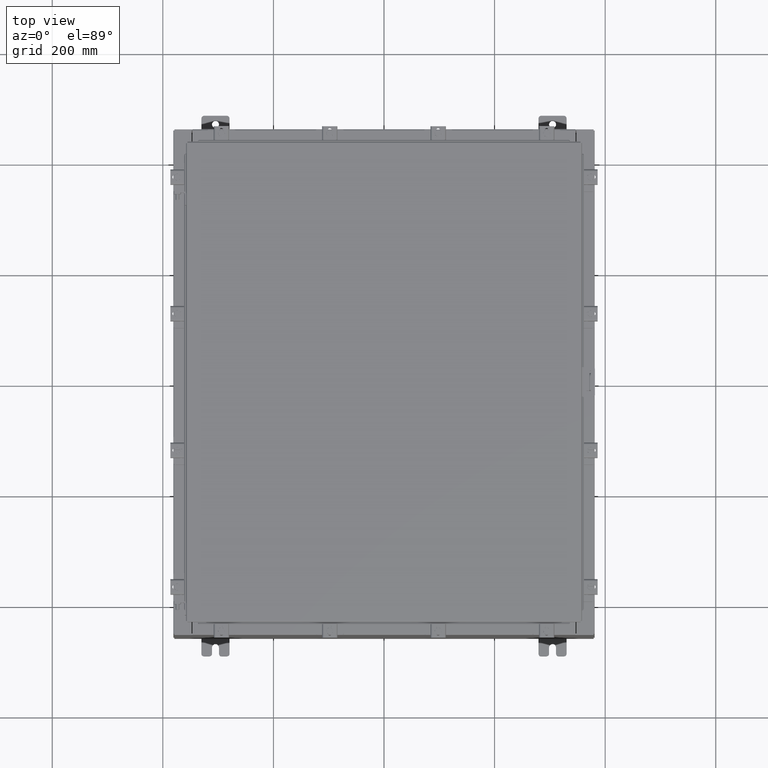
[diagram: clean part render]
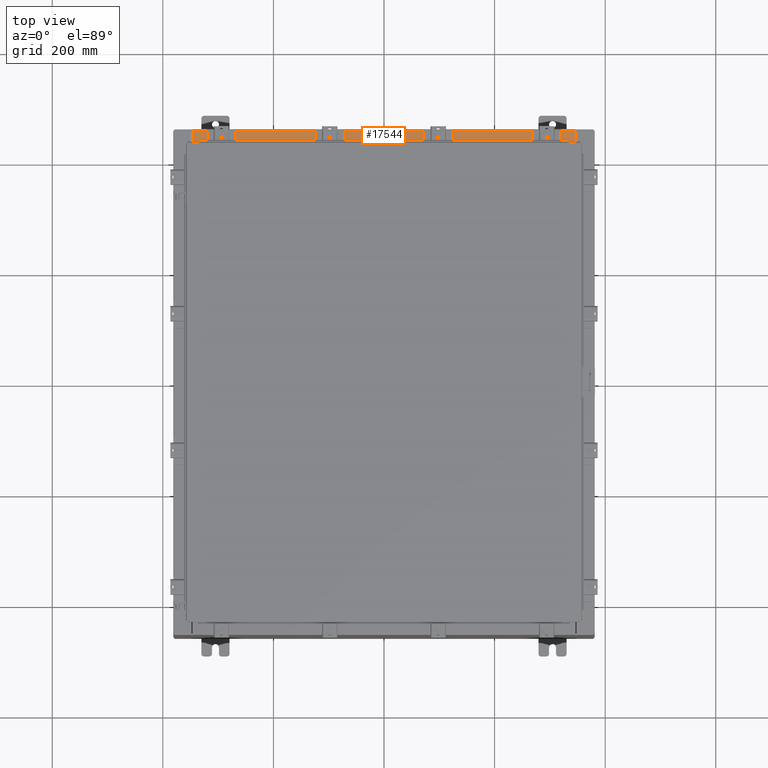
[diagram: same view with one face highlighted and labeled with its STEP entity id]
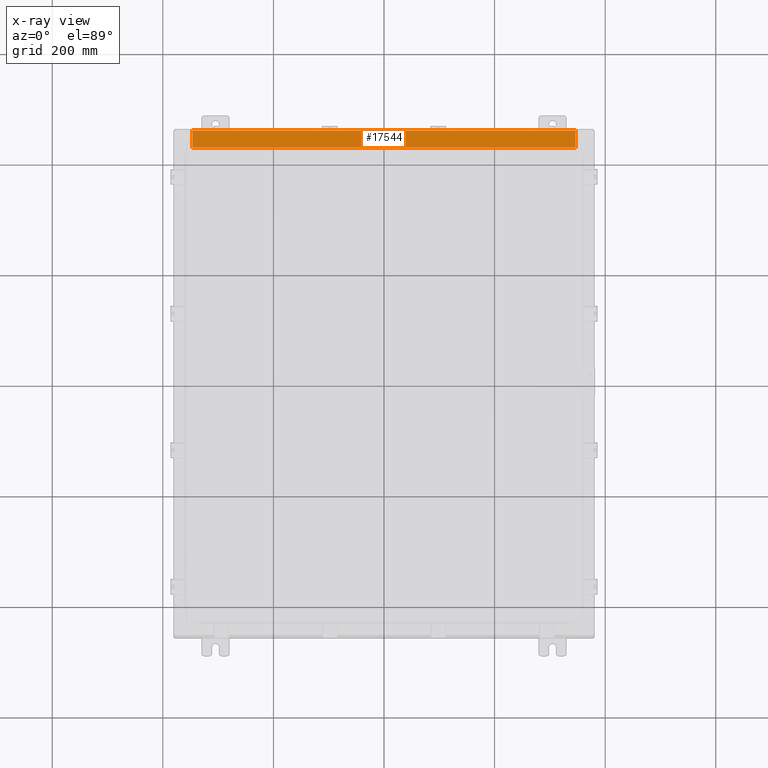
[diagram: x-ray of the same camera — body ghosted, the highlighted face saturated]
A machine part, top view. The second image highlights one B-rep face of the part: STEP entity #17544.
The next image is the same camera in x-ray: the body ghosted, the highlighted face saturated — about 0% of this face is hidden behind the body in this view.
In plain terms, the highlighted planar face has unit normal (0, 0, 1).
Its self-contained STEP definition (entity closure, byte-faithful):
#19 = LINE ( 'NONE', #3150, #18381 ) ;
#273 = ORIENTED_EDGE ( 'NONE', *, *, #4123, .F. ) ;
#557 = LINE ( 'NONE', #18237, #20105 ) ;
#1679 = VERTEX_POINT ( 'NONE', #17396 ) ;
#2013 = EDGE_CURVE ( 'NONE', #14823, #13601, #19, .T. ) ;
#3039 = EDGE_CURVE ( 'NONE', #1679, #5756, #557, .T. ) ;
#3150 = CARTESIAN_POINT ( 'NONE',  ( -13.63719999999999800, -0.07469999999999973900, 8.000000000000000000 ) ) ;
#3585 = EDGE_CURVE ( 'NONE', #1679, #13601, #4989, .T. ) ;
#4123 = EDGE_CURVE ( 'NONE', #5756, #14823, #10570, .T. ) ;
#4989 = LINE ( 'NONE', #5865, #9428 ) ;
#5452 = ORIENTED_EDGE ( 'NONE', *, *, #3585, .T. ) ;
#5453 = FACE_OUTER_BOUND ( 'NONE', #20499, .T. ) ;
#5756 = VERTEX_POINT ( 'NONE', #23653 ) ;
#5865 = CARTESIAN_POINT ( 'NONE',  ( 6.299767562217697500E-016, -0.08769999999999862600, 7.999999999999999100 ) ) ;
#6963 = DIRECTION ( 'NONE',  ( -0.0000000000000000000, 1.000000000000000000, -3.566381192773190000E-015 ) ) ;
#7297 = CARTESIAN_POINT ( 'NONE',  ( -13.63719999999999800, -1.287299999999999400, 8.000000000000003600 ) ) ;
#8803 = DIRECTION ( 'NONE',  ( -0.0000000000000000000, -1.000000000000000000, 3.566381192773190000E-015 ) ) ;
#9428 = VECTOR ( 'NONE', #20992, 39.37007874015748100 ) ;
#10235 = AXIS2_PLACEMENT_3D ( 'NONE', #10263, #23454, #12160 ) ;
#10263 = CARTESIAN_POINT ( 'NONE',  ( 6.405177647445352000E-016, 2.852545452309694500E-014, 7.999999999999999100 ) ) ;
#10570 = LINE ( 'NONE', #10573, #20602 ) ;
#10573 = CARTESIAN_POINT ( 'NONE',  ( 13.63720000000000400, -1.287300000000000300, 8.000000000000003600 ) ) ;
#12160 = DIRECTION ( 'NONE',  ( 0.0000000000000000000, -1.000000000000000000, 3.566381192773190000E-015 ) ) ;
#13601 = VERTEX_POINT ( 'NONE', #22222 ) ;
#14278 = ORIENTED_EDGE ( 'NONE', *, *, #3039, .F. ) ;
#14823 = VERTEX_POINT ( 'NONE', #7297 ) ;
#15882 = PLANE ( 'NONE',  #10235 ) ;
#17396 = CARTESIAN_POINT ( 'NONE',  ( 13.63720000000000400, -0.08769999999999829300, 7.999999999999997300 ) ) ;
#17544 = ADVANCED_FACE ( 'NONE', ( #5453 ), #15882, .T. ) ;
#18237 = CARTESIAN_POINT ( 'NONE',  ( 13.63720000000000400, -1.300299999999999800, 8.000000000000001800 ) ) ;
#18381 = VECTOR ( 'NONE', #6963, 39.37007874015748100 ) ;
#18625 = ORIENTED_EDGE ( 'NONE', *, *, #2013, .F. ) ;
#20105 = VECTOR ( 'NONE', #8803, 39.37007874015748100 ) ;
#20499 = EDGE_LOOP ( 'NONE', ( #18625, #273, #14278, #5452 ) ) ;
#20602 = VECTOR ( 'NONE', #21865, 39.37007874015748100 ) ;
#20992 = DIRECTION ( 'NONE',  ( -1.000000000000000000, 1.201939398262515800E-016, 8.012929321750060900E-017 ) ) ;
#21865 = DIRECTION ( 'NONE',  ( -1.000000000000000000, 0.0000000000000000000, 0.0000000000000000000 ) ) ;
#22222 = CARTESIAN_POINT ( 'NONE',  ( -13.63719999999999800, -0.08769999999999862600, 8.000000000000000000 ) ) ;
#23454 = DIRECTION ( 'NONE',  ( 8.012929321750104000E-017, 3.566381192773190000E-015, 1.000000000000000000 ) ) ;
#23653 = CARTESIAN_POINT ( 'NONE',  ( 13.63720000000000400, -1.287300000000000300, 8.000000000000001800 ) ) ;